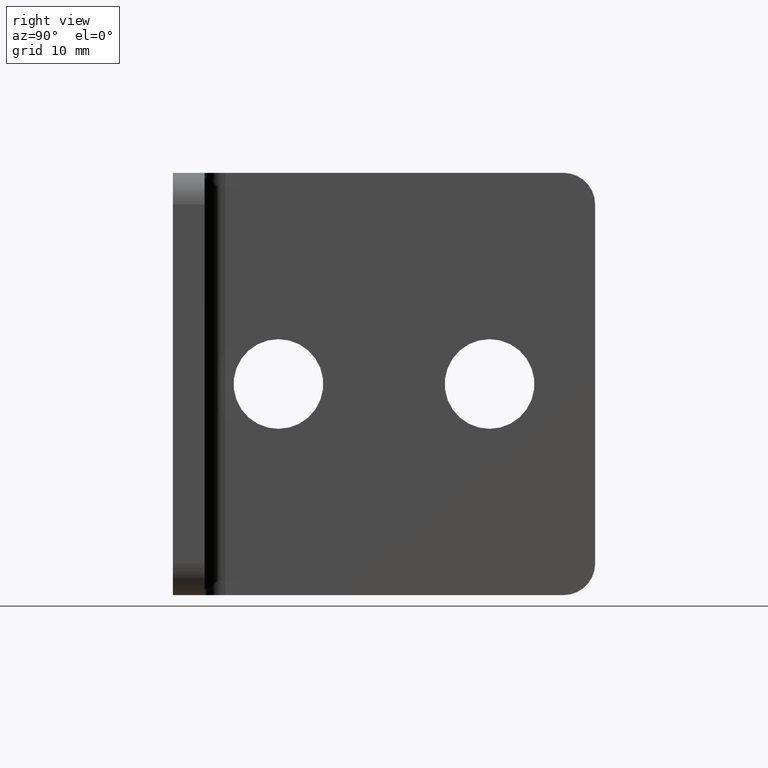
[diagram: clean part render]
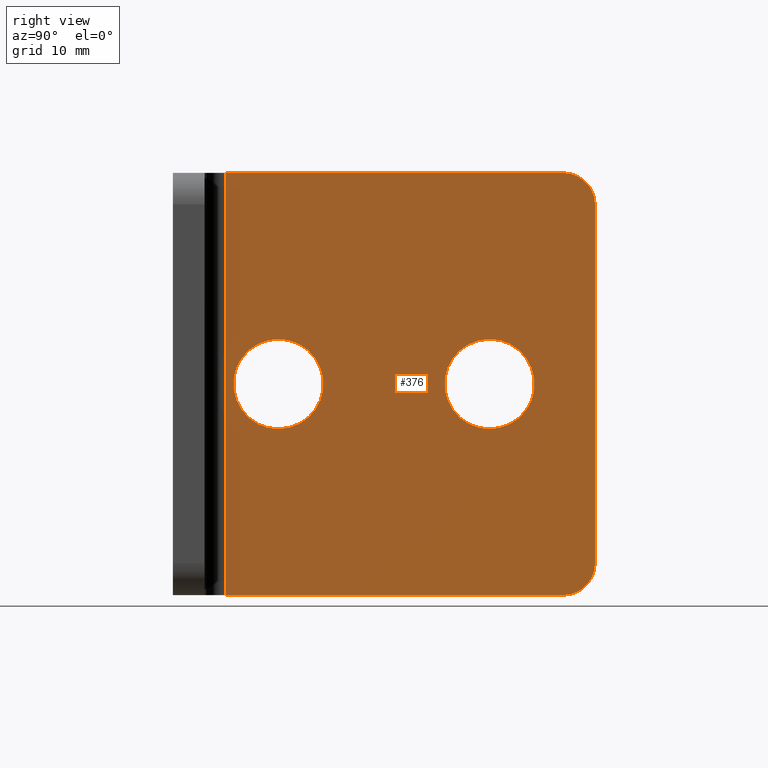
[diagram: same view with one face highlighted and labeled with its STEP entity id]
A machine part, right view. The second image highlights one B-rep face of the part: STEP entity #376.
In plain terms, the highlighted planar face has unit normal (1, 0, -0).
Its self-contained STEP definition (entity closure, byte-faithful):
#17=FACE_BOUND('',#67,.T.);
#18=FACE_BOUND('',#68,.T.);
#27=PLANE('',#429);
#42=FACE_OUTER_BOUND('',#66,.T.);
#66=EDGE_LOOP('',(#287,#288,#289,#290,#291,#292));
#67=EDGE_LOOP('',(#293));
#68=EDGE_LOOP('',(#294));
#101=LINE('',#623,#133);
#104=LINE('',#629,#136);
#105=LINE('',#633,#137);
#106=LINE('',#634,#138);
#133=VECTOR('',#502,10.);
#136=VECTOR('',#507,10.);
#137=VECTOR('',#510,10.);
#138=VECTOR('',#511,10.);
#158=CIRCLE('',#427,3.);
#159=CIRCLE('',#430,3.);
#160=CIRCLE('',#431,4.25);
#161=CIRCLE('',#432,4.25);
#187=VERTEX_POINT('',#616);
#188=VERTEX_POINT('',#618);
#189=VERTEX_POINT('',#622);
#191=VERTEX_POINT('',#628);
#192=VERTEX_POINT('',#630);
#193=VERTEX_POINT('',#632);
#194=VERTEX_POINT('',#635);
#195=VERTEX_POINT('',#637);
#223=EDGE_CURVE('',#187,#188,#158,.T.);
#225=EDGE_CURVE('',#189,#188,#101,.T.);
#228=EDGE_CURVE('',#187,#191,#104,.T.);
#229=EDGE_CURVE('',#192,#191,#159,.T.);
#230=EDGE_CURVE('',#193,#192,#105,.T.);
#231=EDGE_CURVE('',#193,#189,#106,.T.);
#232=EDGE_CURVE('',#194,#194,#160,.T.);
#233=EDGE_CURVE('',#195,#195,#161,.T.);
#287=ORIENTED_EDGE('',*,*,#223,.F.);
#288=ORIENTED_EDGE('',*,*,#228,.T.);
#289=ORIENTED_EDGE('',*,*,#229,.F.);
#290=ORIENTED_EDGE('',*,*,#230,.F.);
#291=ORIENTED_EDGE('',*,*,#231,.T.);
#292=ORIENTED_EDGE('',*,*,#225,.T.);
#293=ORIENTED_EDGE('',*,*,#232,.T.);
#294=ORIENTED_EDGE('',*,*,#233,.T.);
#376=ADVANCED_FACE('',(#42,#17,#18),#27,.T.);
#427=AXIS2_PLACEMENT_3D('',#619,#497,#498);
#429=AXIS2_PLACEMENT_3D('',#627,#505,#506);
#430=AXIS2_PLACEMENT_3D('',#631,#508,#509);
#431=AXIS2_PLACEMENT_3D('',#636,#512,#513);
#432=AXIS2_PLACEMENT_3D('',#638,#514,#515);
#497=DIRECTION('center_axis',(-1.,-5.00406247868089E-17,1.66533453693773E-16));
#498=DIRECTION('ref_axis',(0.,0.707106781186547,-0.707106781186547));
#502=DIRECTION('',(4.52119264905414E-17,1.,1.11079774368113E-15));
#505=DIRECTION('center_axis',(1.,5.00406247868089E-17,-1.66533453693773E-16));
#506=DIRECTION('ref_axis',(1.66533453693773E-16,1.66533453693773E-16,1.));
#507=DIRECTION('',(1.66533453693774E-16,-1.66533453693773E-16,1.));
#508=DIRECTION('center_axis',(-1.,-5.00406247868089E-17,1.66533453693773E-16));
#509=DIRECTION('ref_axis',(0.,0.707106781186549,0.707106781186546));
#510=DIRECTION('',(4.52119264905414E-17,1.,6.85020677889498E-16));
#511=DIRECTION('',(-1.66533453693774E-16,0.,-1.));
#512=DIRECTION('center_axis',(-1.,-5.00406247868089E-17,1.66533453693773E-16));
#513=DIRECTION('ref_axis',(-1.66533453693774E-16,1.23359664272335E-48,-1.));
#514=DIRECTION('center_axis',(-1.,-5.00406247868089E-17,1.66533453693773E-16));
#515=DIRECTION('ref_axis',(-1.66533453693774E-16,1.23359664272335E-48,-1.));
#616=CARTESIAN_POINT('',(3.,40.,-17.));
#618=CARTESIAN_POINT('',(3.,37.,-20.));
#619=CARTESIAN_POINT('Origin',(3.,37.,-17.));
#622=CARTESIAN_POINT('',(3.,5.,-20.));
#623=CARTESIAN_POINT('',(3.,-0.215043804959053,-20.));
#627=CARTESIAN_POINT('Origin',(3.,19.8924780975205,-5.23595420950588E-15));
#628=CARTESIAN_POINT('',(3.,40.,17.));
#629=CARTESIAN_POINT('',(3.,40.,-20.));
#630=CARTESIAN_POINT('',(3.00000000000001,37.,20.));
#631=CARTESIAN_POINT('Origin',(3.,37.,17.));
#632=CARTESIAN_POINT('',(3.00000000000001,5.,20.));
#633=CARTESIAN_POINT('',(3.00000000000001,-0.215043804959053,20.));
#634=CARTESIAN_POINT('',(3.,5.,-3.56166667568432E-15));
#635=CARTESIAN_POINT('',(3.,30.,4.25));
#636=CARTESIAN_POINT('Origin',(3.,30.,0.));
#637=CARTESIAN_POINT('',(3.,10.,4.25));
#638=CARTESIAN_POINT('Origin',(3.,10.,0.));